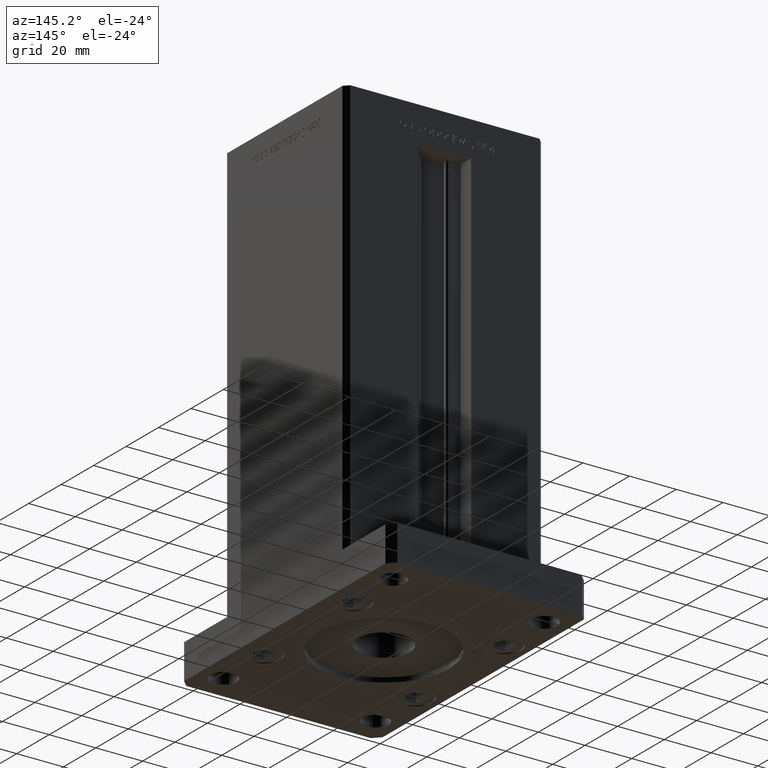
[diagram: clean part render]
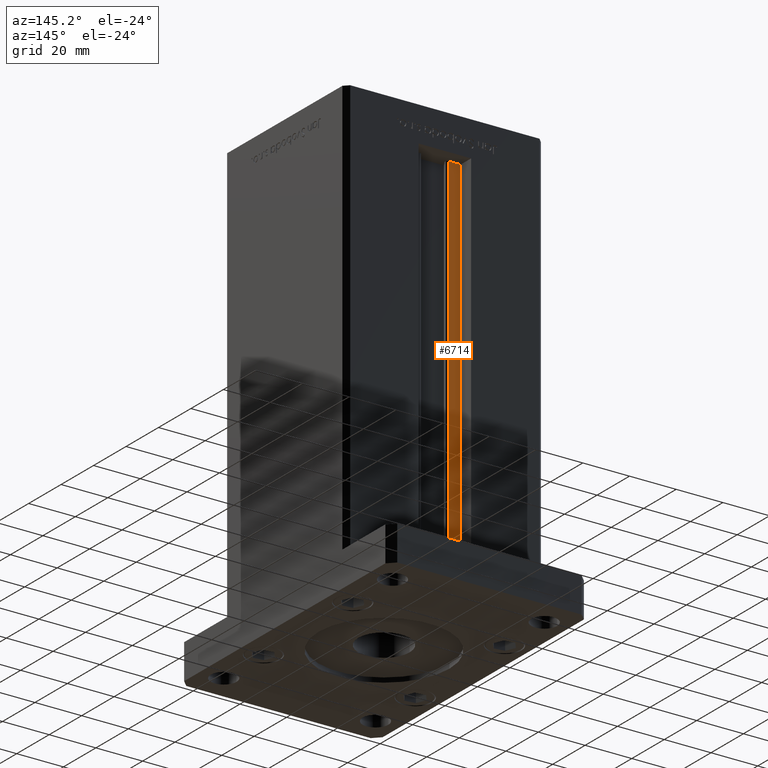
[diagram: same view with one face highlighted and labeled with its STEP entity id]
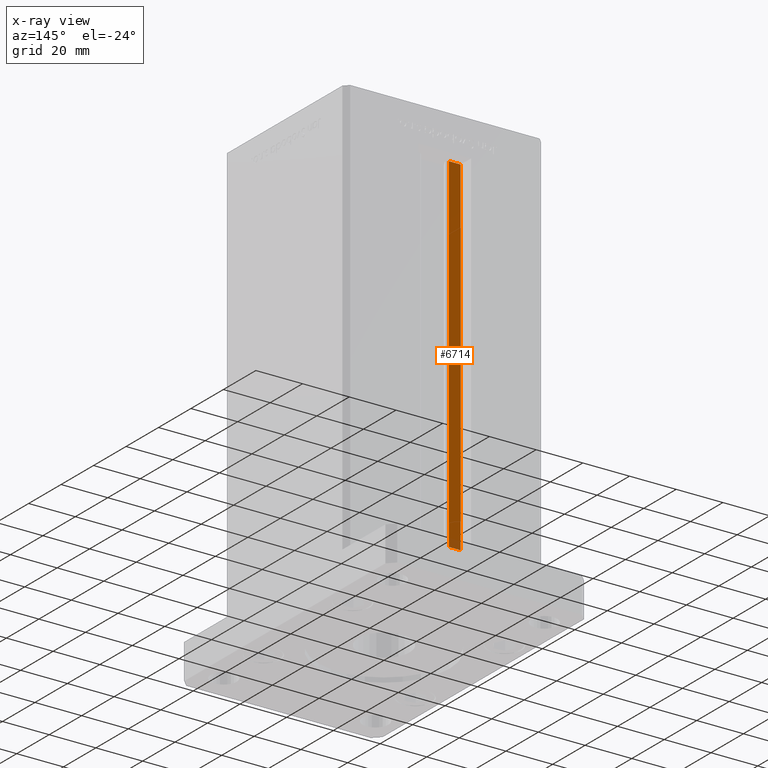
[diagram: x-ray of the same camera — body ghosted, the highlighted face saturated]
A machine part, auxiliary view. The second image highlights one B-rep face of the part: STEP entity #6714.
The next image is the same camera in x-ray: the body ghosted, the highlighted face saturated — about 2% of this face is hidden behind the body in this view.
In plain terms, the highlighted planar face has unit normal (0, -1, 0).
Its self-contained STEP definition (entity closure, byte-faithful):
#2842 = CARTESIAN_POINT ( 'NONE',  ( 0.000000000000000000, 30.99999999999999289, 148.5000000000000000 ) ) ;
#3315 = CARTESIAN_POINT ( 'NONE',  ( -6.183333333333999704, 30.99999999999999289, 0.000000000000000000 ) ) ;
#3947 = CARTESIAN_POINT ( 'NONE',  ( -6.183333333333999704, 30.99999999999999289, 0.000000000000000000 ) ) ;
#5569 = EDGE_CURVE ( 'NONE', #15310, #50106, #47873, .T. ) ;
#6157 = VECTOR ( 'NONE', #14812, 1000.000000000000000 ) ;
#6714 = ADVANCED_FACE ( 'NONE', ( #40513 ), #16032, .F. ) ;
#8713 = LINE ( 'NONE', #13576, #30483 ) ;
#10483 = LINE ( 'NONE', #51711, #6157 ) ;
#13080 = ORIENTED_EDGE ( 'NONE', *, *, #42248, .T. ) ;
#13576 = CARTESIAN_POINT ( 'NONE',  ( -11.25000000000000000, 30.99999999999999289, 0.000000000000000000 ) ) ;
#14812 = DIRECTION ( 'NONE',  ( 1.000000000000000000, -0.000000000000000000, -0.000000000000000000 ) ) ;
#15310 = VERTEX_POINT ( 'NONE', #23146 ) ;
#16032 = PLANE ( 'NONE',  #21880 ) ;
#19219 = VERTEX_POINT ( 'NONE', #35383 ) ;
#19825 = CARTESIAN_POINT ( 'NONE',  ( -6.183333333333999704, 30.99999999999999289, 0.000000000000000000 ) ) ;
#20034 = ORIENTED_EDGE ( 'NONE', *, *, #29933, .F. ) ;
#21880 = AXIS2_PLACEMENT_3D ( 'NONE', #3315, #32432, #24650 ) ;
#23146 = CARTESIAN_POINT ( 'NONE',  ( -6.183333333333999704, 30.99999999999999289, 148.5000000000000000 ) ) ;
#23301 = CARTESIAN_POINT ( 'NONE',  ( -11.25000000000000000, 30.99999999999999289, 148.5000000000000000 ) ) ;
#24650 = DIRECTION ( 'NONE',  ( 0.000000000000000000, 0.000000000000000000, -1.000000000000000000 ) ) ;
#25978 = DIRECTION ( 'NONE',  ( -0.000000000000000000, -0.000000000000000000, 1.000000000000000000 ) ) ;
#29933 = EDGE_CURVE ( 'NONE', #19219, #48488, #10483, .T. ) ;
#30483 = VECTOR ( 'NONE', #25978, 1000.000000000000000 ) ;
#32432 = DIRECTION ( 'NONE',  ( 0.000000000000000000, -1.000000000000000000, -0.000000000000000000 ) ) ;
#33732 = ORIENTED_EDGE ( 'NONE', *, *, #52616, .F. ) ;
#34417 = DIRECTION ( 'NONE',  ( -1.000000000000000000, 0.000000000000000000, 0.000000000000000000 ) ) ;
#35383 = CARTESIAN_POINT ( 'NONE',  ( -11.25000000000000000, 30.99999999999999289, 0.000000000000000000 ) ) ;
#35802 = VECTOR ( 'NONE', #37374, 1000.000000000000000 ) ;
#37374 = DIRECTION ( 'NONE',  ( -0.000000000000000000, -0.000000000000000000, 1.000000000000000000 ) ) ;
#40513 = FACE_OUTER_BOUND ( 'NONE', #50998, .T. ) ;
#40608 = LINE ( 'NONE', #3947, #35802 ) ;
#42248 = EDGE_CURVE ( 'NONE', #19219, #50106, #8713, .T. ) ;
#47873 = LINE ( 'NONE', #2842, #52754 ) ;
#48488 = VERTEX_POINT ( 'NONE', #19825 ) ;
#48516 = ORIENTED_EDGE ( 'NONE', *, *, #5569, .F. ) ;
#50106 = VERTEX_POINT ( 'NONE', #23301 ) ;
#50998 = EDGE_LOOP ( 'NONE', ( #33732, #20034, #13080, #48516 ) ) ;
#51711 = CARTESIAN_POINT ( 'NONE',  ( -6.183333333333999704, 30.99999999999999289, 0.000000000000000000 ) ) ;
#52616 = EDGE_CURVE ( 'NONE', #48488, #15310, #40608, .T. ) ;
#52754 = VECTOR ( 'NONE', #34417, 1000.000000000000000 ) ;